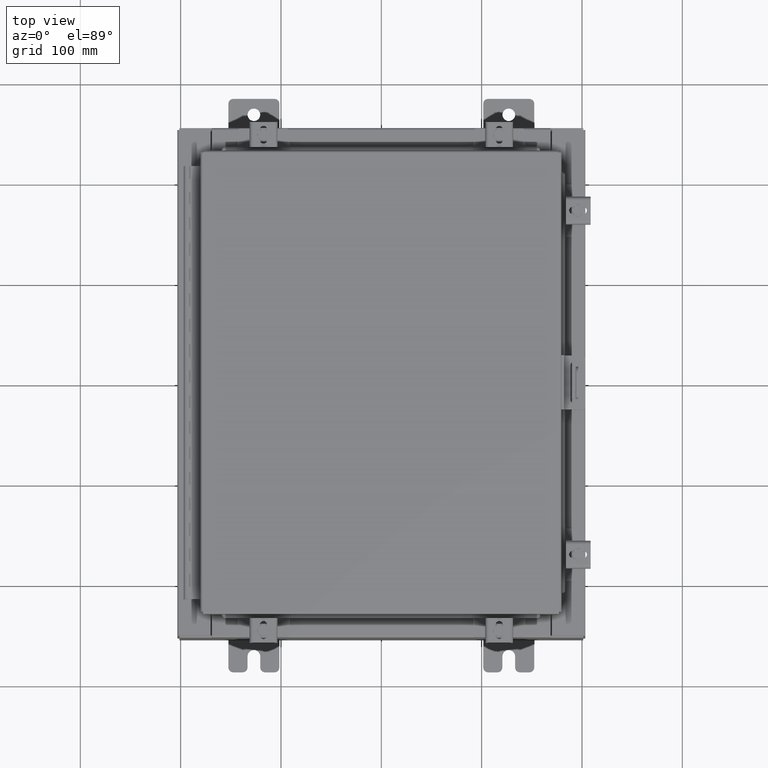
[diagram: clean part render]
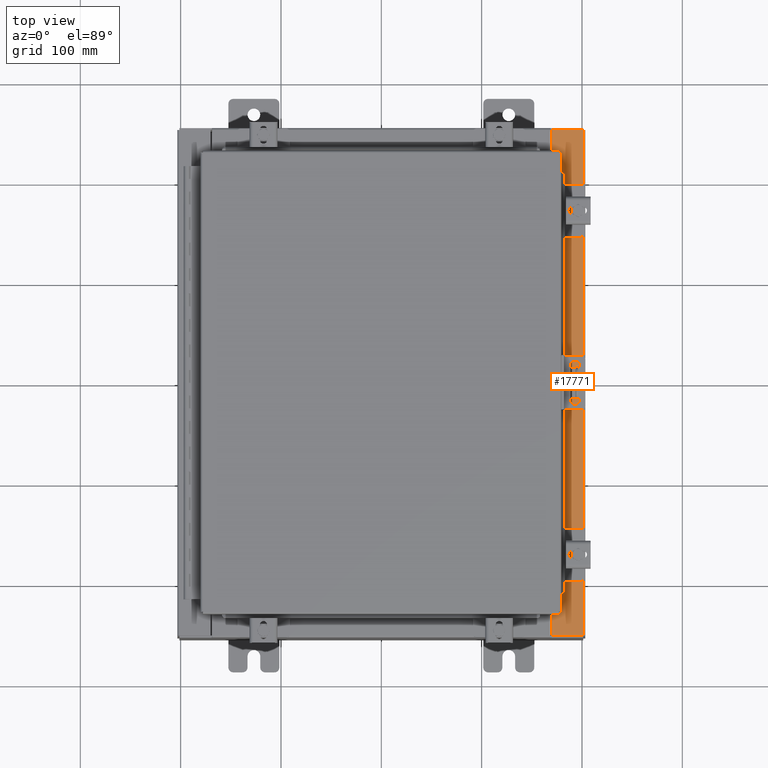
[diagram: same view with one face highlighted and labeled with its STEP entity id]
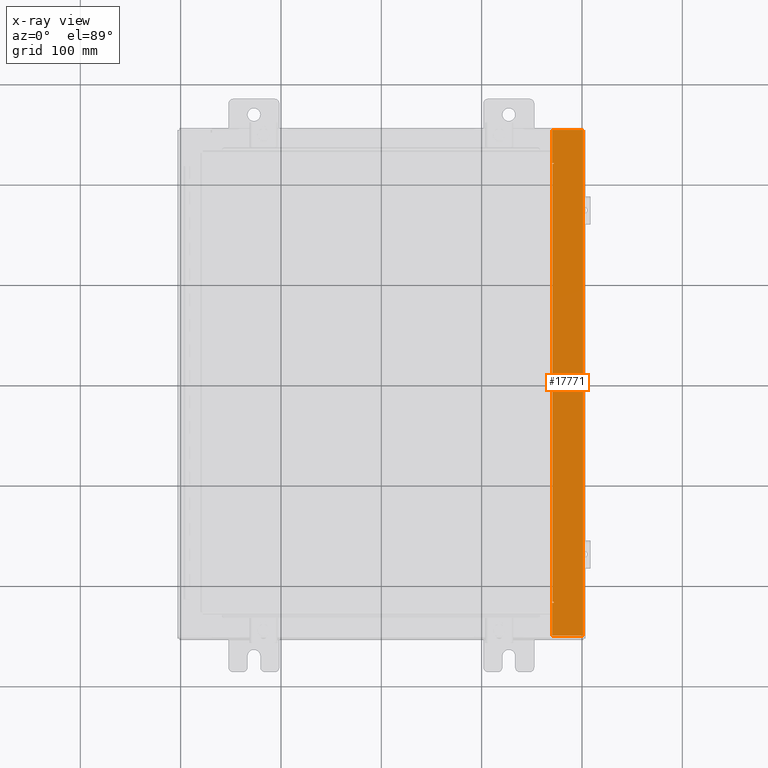
[diagram: x-ray of the same camera — body ghosted, the highlighted face saturated]
A machine part, top view. The second image highlights one B-rep face of the part: STEP entity #17771.
The next image is the same camera in x-ray: the body ghosted, the highlighted face saturated — about 0% of this face is hidden behind the body in this view.
In plain terms, the highlighted planar face has unit normal (-0, 0, -1).
Its self-contained STEP definition (entity closure, byte-faithful):
#60 = LINE ( 'NONE', #4522, #26320 ) ;
#228 = DIRECTION ( 'NONE',  ( -0.0000000000000000000, -1.000000000000000000, -5.504816970095139000E-017 ) ) ;
#349 = VERTEX_POINT ( 'NONE', #14709 ) ;
#1308 = VERTEX_POINT ( 'NONE', #21691 ) ;
#1714 = LINE ( 'NONE', #23778, #9553 ) ;
#2345 = DIRECTION ( 'NONE',  ( 1.100963394019027800E-016, -1.000000000000000000, -5.504816970095217300E-017 ) ) ;
#2736 = CARTESIAN_POINT ( 'NONE',  ( 6.699700000000024900, -8.631100000000005300, 5.925300000000008000 ) ) ;
#3302 = CARTESIAN_POINT ( 'NONE',  ( 6.712700000000025600, 8.593749999999994700, 5.925300000000008000 ) ) ;
#3661 = ORIENTED_EDGE ( 'NONE', *, *, #12788, .F. ) ;
#4161 = CARTESIAN_POINT ( 'NONE',  ( 4.252457061908993700E-014, -3.261769199290503100E-016, 5.925300000000056000 ) ) ;
#4346 = DIRECTION ( 'NONE',  ( 1.000000000000000000, -7.444398091725592200E-046, -7.132762385546378400E-015 ) ) ;
#4522 = CARTESIAN_POINT ( 'NONE',  ( 4.252457061908993100E-014, -9.925300000000001800, 5.925300000000055100 ) ) ;
#4850 = VECTOR ( 'NONE', #24274, 39.37007874015748100 ) ;
#5418 = CARTESIAN_POINT ( 'NONE',  ( 4.252457061908994400E-014, 9.925299999999996500, 5.925300000000056000 ) ) ;
#5926 = EDGE_LOOP ( 'NONE', ( #7071, #15034, #11458, #11854, #9885, #16348, #22258, #9687, #27400, #24143, #3661, #19395 ) ) ;
#6454 = VECTOR ( 'NONE', #10375, 39.37007874015748100 ) ;
#6563 = LINE ( 'NONE', #26008, #23499 ) ;
#6805 = CARTESIAN_POINT ( 'NONE',  ( 6.699700000000024900, -9.925300000000001800, 5.925300000000007100 ) ) ;
#7071 = ORIENTED_EDGE ( 'NONE', *, *, #12135, .F. ) ;
#7593 = LINE ( 'NONE', #27060, #6454 ) ;
#8176 = AXIS2_PLACEMENT_3D ( 'NONE', #4161, #21850, #21991 ) ;
#8372 = DIRECTION ( 'NONE',  ( 1.000000000000000000, 0.0000000000000000000, 0.0000000000000000000 ) ) ;
#8469 = CARTESIAN_POINT ( 'NONE',  ( 6.699700000000024900, -8.631100000000005300, 5.925300000000008000 ) ) ;
#9079 = VECTOR ( 'NONE', #13338, 39.37007874015748100 ) ;
#9119 = CARTESIAN_POINT ( 'NONE',  ( 6.699700000000022200, 9.925299999999992900, 5.925300000000008000 ) ) ;
#9285 = VERTEX_POINT ( 'NONE', #21571 ) ;
#9553 = VECTOR ( 'NONE', #228, 39.37007874015748100 ) ;
#9687 = ORIENTED_EDGE ( 'NONE', *, *, #12579, .F. ) ;
#9756 = DIRECTION ( 'NONE',  ( -1.000000000000000000, 4.379057701015053300E-047, 7.132762385546378400E-015 ) ) ;
#9885 = ORIENTED_EDGE ( 'NONE', *, *, #12307, .T. ) ;
#10336 = VERTEX_POINT ( 'NONE', #9119 ) ;
#10375 = DIRECTION ( 'NONE',  ( 1.100963394019027800E-016, -1.000000000000000000, -5.504816970095217300E-017 ) ) ;
#10746 = VERTEX_POINT ( 'NONE', #25819 ) ;
#11415 = CARTESIAN_POINT ( 'NONE',  ( 6.699700000000022200, 8.631099999999994700, 5.925300000000008000 ) ) ;
#11458 = ORIENTED_EDGE ( 'NONE', *, *, #12224, .T. ) ;
#11854 = ORIENTED_EDGE ( 'NONE', *, *, #12255, .F. ) ;
#12135 = EDGE_CURVE ( 'NONE', #28530, #25703, #27689, .T. ) ;
#12173 = EDGE_CURVE ( 'NONE', #28530, #24284, #7593, .T. ) ;
#12224 = EDGE_CURVE ( 'NONE', #24284, #23225, #60, .T. ) ;
#12255 = EDGE_CURVE ( 'NONE', #1308, #23225, #1714, .T. ) ;
#12307 = EDGE_CURVE ( 'NONE', #1308, #10336, #18512, .T. ) ;
#12399 = EDGE_CURVE ( 'NONE', #10336, #27785, #29545, .T. ) ;
#12482 = EDGE_CURVE ( 'NONE', #27082, #27785, #19960, .T. ) ;
#12579 = EDGE_CURVE ( 'NONE', #10746, #27082, #13069, .T. ) ;
#12585 = EDGE_CURVE ( 'NONE', #29512, #10746, #21580, .T. ) ;
#12617 = EDGE_CURVE ( 'NONE', #349, #29512, #29478, .T. ) ;
#12788 = EDGE_CURVE ( 'NONE', #9285, #349, #6563, .T. ) ;
#12792 = EDGE_CURVE ( 'NONE', #25703, #9285, #14974, .T. ) ;
#13013 = VECTOR ( 'NONE', #26102, 39.37007874015748100 ) ;
#13040 = DIRECTION ( 'NONE',  ( 7.132762385546378400E-015, -5.504816970095138400E-017, 1.000000000000000000 ) ) ;
#13069 = CIRCLE ( 'NONE', #15695, 0.01867499999999949400 ) ;
#13338 = DIRECTION ( 'NONE',  ( 1.000000000000000000, 0.0000000000000000000, 0.0000000000000000000 ) ) ;
#14612 = VECTOR ( 'NONE', #18463, 39.37007874015748100 ) ;
#14709 = CARTESIAN_POINT ( 'NONE',  ( 6.712700000000025600, -8.593750000000005300, 5.925300000000008000 ) ) ;
#14974 = CIRCLE ( 'NONE', #20763, 0.01867499999999949400 ) ;
#15034 = ORIENTED_EDGE ( 'NONE', *, *, #12173, .T. ) ;
#15695 = AXIS2_PLACEMENT_3D ( 'NONE', #18984, #17998, #8372 ) ;
#16348 = ORIENTED_EDGE ( 'NONE', *, *, #12399, .T. ) ;
#16825 = CARTESIAN_POINT ( 'NONE',  ( 6.712700000000025600, 8.593749999999994700, 5.925300000000008000 ) ) ;
#17350 = VECTOR ( 'NONE', #9756, 39.37007874015748100 ) ;
#17771 = ADVANCED_FACE ( 'NONE', ( #19025 ), #21643, .F. ) ;
#17998 = DIRECTION ( 'NONE',  ( 7.132762385546378400E-015, -5.504816970095138400E-017, 1.000000000000000000 ) ) ;
#18463 = DIRECTION ( 'NONE',  ( -1.000000000000000000, 2.170286390199861100E-014, 0.0000000000000000000 ) ) ;
#18512 = LINE ( 'NONE', #5418, #17350 ) ;
#18880 = CARTESIAN_POINT ( 'NONE',  ( 7.912300000000022300, -9.925300000000001800, 5.925299999999999100 ) ) ;
#18984 = CARTESIAN_POINT ( 'NONE',  ( 6.750050000000025600, 8.612424999999992900, 5.925300000000008000 ) ) ;
#19025 = FACE_OUTER_BOUND ( 'NONE', #5926, .T. ) ;
#19126 = CARTESIAN_POINT ( 'NONE',  ( 6.750050000000025600, -8.631100000000005300, 5.925300000000008000 ) ) ;
#19395 = ORIENTED_EDGE ( 'NONE', *, *, #12792, .F. ) ;
#19960 = LINE ( 'NONE', #26550, #14612 ) ;
#20326 = CARTESIAN_POINT ( 'NONE',  ( 6.712700000000025600, -8.593750000000005300, 5.925300000000008000 ) ) ;
#20523 = DIRECTION ( 'NONE',  ( 1.000000000000000000, 0.0000000000000000000, 0.0000000000000000000 ) ) ;
#20763 = AXIS2_PLACEMENT_3D ( 'NONE', #20981, #13040, #20523 ) ;
#20981 = CARTESIAN_POINT ( 'NONE',  ( 6.750050000000025600, -8.612425000000005300, 5.925300000000008000 ) ) ;
#21146 = CARTESIAN_POINT ( 'NONE',  ( 6.750050000000025600, 8.631099999999994700, 5.925300000000008000 ) ) ;
#21571 = CARTESIAN_POINT ( 'NONE',  ( 6.750050000000025600, -8.593750000000005300, 5.925300000000008000 ) ) ;
#21580 = LINE ( 'NONE', #16825, #9079 ) ;
#21643 = PLANE ( 'NONE',  #8176 ) ;
#21691 = CARTESIAN_POINT ( 'NONE',  ( 7.912300000000022300, 9.925299999999991100, 5.925299999999999100 ) ) ;
#21850 = DIRECTION ( 'NONE',  ( -7.132762385546378400E-015, 5.504816970095137800E-017, -1.000000000000000000 ) ) ;
#21991 = DIRECTION ( 'NONE',  ( -1.000000000000000000, 0.0000000000000000000, 7.132762385546378400E-015 ) ) ;
#21994 = DIRECTION ( 'NONE',  ( -1.000000000000000000, 0.0000000000000000000, 0.0000000000000000000 ) ) ;
#22258 = ORIENTED_EDGE ( 'NONE', *, *, #12482, .F. ) ;
#23225 = VERTEX_POINT ( 'NONE', #18880 ) ;
#23499 = VECTOR ( 'NONE', #21994, 39.37007874015748100 ) ;
#23778 = CARTESIAN_POINT ( 'NONE',  ( 7.912300000000022300, -9.925300000000001800, 5.925299999999999100 ) ) ;
#24143 = ORIENTED_EDGE ( 'NONE', *, *, #12617, .F. ) ;
#24274 = DIRECTION ( 'NONE',  ( 1.000000000000000000, 2.170286390199955400E-014, 0.0000000000000000000 ) ) ;
#24284 = VERTEX_POINT ( 'NONE', #6805 ) ;
#25254 = VECTOR ( 'NONE', #2345, 39.37007874015748100 ) ;
#25703 = VERTEX_POINT ( 'NONE', #19126 ) ;
#25819 = CARTESIAN_POINT ( 'NONE',  ( 6.750050000000025600, 8.593749999999992900, 5.925300000000008000 ) ) ;
#26008 = CARTESIAN_POINT ( 'NONE',  ( 6.750050000000025600, -8.593750000000005300, 5.925300000000008000 ) ) ;
#26102 = DIRECTION ( 'NONE',  ( -0.0000000000000000000, 1.000000000000000000, -0.0000000000000000000 ) ) ;
#26320 = VECTOR ( 'NONE', #4346, 39.37007874015748100 ) ;
#26550 = CARTESIAN_POINT ( 'NONE',  ( 6.750050000000025600, 8.631099999999994700, 5.925300000000008000 ) ) ;
#26691 = CARTESIAN_POINT ( 'NONE',  ( 6.699700000000024000, 4.114355251618783500E-016, 5.925300000000008000 ) ) ;
#27060 = CARTESIAN_POINT ( 'NONE',  ( 6.699700000000024000, 4.114355251618783500E-016, 5.925300000000008000 ) ) ;
#27082 = VERTEX_POINT ( 'NONE', #21146 ) ;
#27400 = ORIENTED_EDGE ( 'NONE', *, *, #12585, .F. ) ;
#27689 = LINE ( 'NONE', #8469, #4850 ) ;
#27785 = VERTEX_POINT ( 'NONE', #11415 ) ;
#28530 = VERTEX_POINT ( 'NONE', #2736 ) ;
#29478 = LINE ( 'NONE', #20326, #13013 ) ;
#29512 = VERTEX_POINT ( 'NONE', #3302 ) ;
#29545 = LINE ( 'NONE', #26691, #25254 ) ;